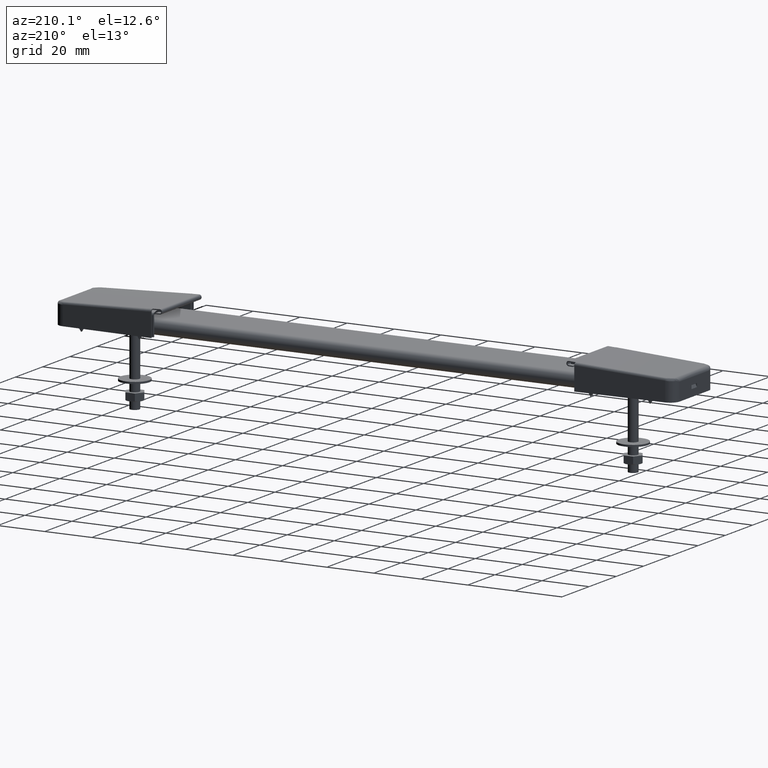
[diagram: clean part render]
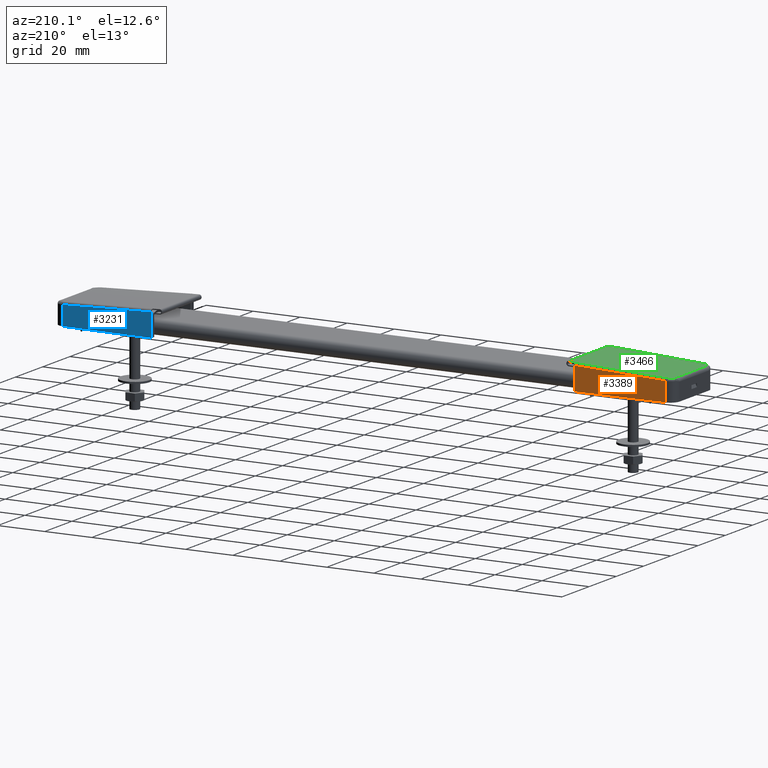
[diagram: same view with three faces highlighted in distinct colors, each labeled with its STEP entity id]
A machine part, auxiliary view with three faces highlighted in distinct colors.
Their STEP definitions:

[orange] entity #3389 — the highlighted face is a freeform B-spline surface patch.
#3003=CARTESIAN_POINT('',(128.094592598178590,-14.698881373630501,8.145223414804848));
#3004=VERTEX_POINT('',#3003);
#3052=CARTESIAN_POINT('',(90.0,-15.599999999999749,9.865849773711291));
#3053=VERTEX_POINT('',#3052);
#3054=CARTESIAN_POINT('',(128.094592598178590,-14.698881373630501,8.145223414804848));
#3055=CARTESIAN_POINT('',(90.0,-15.599999999999749,9.865849773711291));
#3056=QUASI_UNIFORM_CURVE('',1,(#3054,#3055),.UNSPECIFIED.,.F.,.U.);
#3057=EDGE_CURVE('',#3004,#3053,#3056,.T.);
#3144=CARTESIAN_POINT('',(128.094592598178590,-14.698881373630501,0.0));
#3145=VERTEX_POINT('',#3144);
#3146=CARTESIAN_POINT('',(128.094592598178590,-14.698881373630501,0.0));
#3147=CARTESIAN_POINT('',(128.094592598178590,-14.698881373630501,8.145223414804848));
#3148=QUASI_UNIFORM_CURVE('',1,(#3146,#3147),.UNSPECIFIED.,.F.,.U.);
#3149=EDGE_CURVE('',#3145,#3004,#3148,.T.);
#3368=CARTESIAN_POINT('',(129.997413848575090,-14.653870584580430,-0.492799141827202));
#3369=CARTESIAN_POINT('',(88.097174321904902,-15.645010893785949,-0.492799141827202));
#3370=CARTESIAN_POINT('',(129.997413848575090,-14.653870584580430,10.358648474500640));
#3371=CARTESIAN_POINT('',(88.097174321904902,-15.645010893785949,10.358648474500640));
#3372=B_SPLINE_SURFACE_WITH_KNOTS('',1,1,((#3368,#3370),(#3369,#3371)),.UNSPECIFIED.,.F.,.F.,.U.,(2,2),(2,2),(0.0,41.911960482717461),(0.0,10.851447616327841),.UNSPECIFIED.);
#3373=ORIENTED_EDGE('',*,*,#3149,.T.);
#3374=ORIENTED_EDGE('',*,*,#3057,.T.);
#3375=CARTESIAN_POINT('',(90.0,-15.599999999999749,0.0));
#3376=VERTEX_POINT('',#3375);
#3377=CARTESIAN_POINT('',(90.0,-15.599999999999749,9.865849773711291));
#3378=CARTESIAN_POINT('',(90.0,-15.599999999999749,0.0));
#3379=QUASI_UNIFORM_CURVE('',1,(#3377,#3378),.UNSPECIFIED.,.F.,.U.);
#3380=EDGE_CURVE('',#3053,#3376,#3379,.T.);
#3381=ORIENTED_EDGE('',*,*,#3380,.T.);
#3382=CARTESIAN_POINT('',(90.0,-15.599999999999749,0.0));
#3383=CARTESIAN_POINT('',(128.094592598178590,-14.698881373630501,0.0));
#3384=QUASI_UNIFORM_CURVE('',1,(#3382,#3383),.UNSPECIFIED.,.F.,.U.);
#3385=EDGE_CURVE('',#3376,#3145,#3384,.T.);
#3386=ORIENTED_EDGE('',*,*,#3385,.T.);
#3387=EDGE_LOOP('',(#3373,#3374,#3381,#3386));
#3388=FACE_OUTER_BOUND('',#3387,.T.);
#3389=ADVANCED_FACE('',(#3388),#3372,.F.);

[blue] entity #3231 — the highlighted face is a freeform B-spline surface patch.
#2669=CARTESIAN_POINT('',(128.094592598178590,14.698881373630520,8.145223414800340));
#2670=VERTEX_POINT('',#2669);
#3101=CARTESIAN_POINT('',(90.0,15.600000000000000,9.865849773706781));
#3102=VERTEX_POINT('',#3101);
#3103=CARTESIAN_POINT('',(90.0,15.600000000000000,9.865849773706781));
#3104=CARTESIAN_POINT('',(128.094592598178590,14.698881373630520,8.145223414800340));
#3105=QUASI_UNIFORM_CURVE('',1,(#3103,#3104),.UNSPECIFIED.,.F.,.U.);
#3106=EDGE_CURVE('',#3102,#2670,#3105,.T.);
#3180=CARTESIAN_POINT('',(128.094592598178590,14.698881373630520,0.0));
#3181=VERTEX_POINT('',#3180);
#3195=CARTESIAN_POINT('',(128.094592598178590,14.698881373630520,8.145223414800340));
#3196=CARTESIAN_POINT('',(128.094592598178590,14.698881373630520,0.0));
#3197=QUASI_UNIFORM_CURVE('',1,(#3195,#3196),.UNSPECIFIED.,.F.,.U.);
#3198=EDGE_CURVE('',#2670,#3181,#3197,.T.);
#3210=CARTESIAN_POINT('',(88.097175445756974,15.645010867201780,-0.492799141826978));
#3211=CARTESIAN_POINT('',(129.997412724723090,14.653870611164930,-0.492799141826978));
#3212=CARTESIAN_POINT('',(88.097175445756974,15.645010867201780,10.358648474495910));
#3213=CARTESIAN_POINT('',(129.997412724723090,14.653870611164930,10.358648474495910));
#3214=B_SPLINE_SURFACE_WITH_KNOTS('',1,1,((#3210,#3212),(#3211,#3213)),.UNSPECIFIED.,.F.,.F.,.U.,(2,2),(2,2),(0.0,41.911958234384556),(0.0,10.851447616322890),.UNSPECIFIED.);
#3215=CARTESIAN_POINT('',(90.0,15.600000000000000,0.0));
#3216=VERTEX_POINT('',#3215);
#3217=CARTESIAN_POINT('',(90.0,15.600000000000000,9.865849773706781));
#3218=CARTESIAN_POINT('',(90.0,15.600000000000000,0.0));
#3219=QUASI_UNIFORM_CURVE('',1,(#3217,#3218),.UNSPECIFIED.,.F.,.U.);
#3220=EDGE_CURVE('',#3102,#3216,#3219,.T.);
#3221=ORIENTED_EDGE('',*,*,#3220,.F.);
#3222=ORIENTED_EDGE('',*,*,#3106,.T.);
#3223=ORIENTED_EDGE('',*,*,#3198,.T.);
#3224=CARTESIAN_POINT('',(128.094592598178590,14.698881373630520,0.0));
#3225=CARTESIAN_POINT('',(90.0,15.600000000000000,0.0));
#3226=QUASI_UNIFORM_CURVE('',1,(#3224,#3225),.UNSPECIFIED.,.F.,.U.);
#3227=EDGE_CURVE('',#3181,#3216,#3226,.T.);
#3228=ORIENTED_EDGE('',*,*,#3227,.T.);
#3229=EDGE_LOOP('',(#3221,#3222,#3223,#3228));
#3230=FACE_OUTER_BOUND('',#3229,.T.);
#3231=ADVANCED_FACE('',(#3230),#3214,.F.);

[green] entity #3466 — the highlighted face is a freeform B-spline surface patch.
#2656=CARTESIAN_POINT('',(130.567681808010010,12.323788165327260,9.033472279644892));
#2657=VERTEX_POINT('',#2656);
#2680=CARTESIAN_POINT('',(128.116065653974200,13.699161030222919,9.144204934566529));
#2681=VERTEX_POINT('',#2680);
#2692=CARTESIAN_POINT('',(130.567681808010010,12.323788165327260,9.033472279644892));
#2693=CARTESIAN_POINT('',(130.402718137481200,12.580231644302859,9.040923227941999));
#2694=CARTESIAN_POINT('',(130.055109383301500,12.972571867068661,9.056623744585597));
#2695=CARTESIAN_POINT('',(129.238800696182610,13.516475572544630,9.093494128235971));
#2696=CARTESIAN_POINT('',(128.573135245041700,13.689141624679211,9.123560377623011));
#2697=CARTESIAN_POINT('',(128.116065653974200,13.699161030222919,9.144204934566529));
#2698=B_SPLINE_CURVE_WITH_KNOTS('',3,(#2692,#2693,#2694,#2695,#2696,#2697),.UNSPECIFIED.,.F.,.U.,(4,1,1,4),(0.000000295960336,0.914984102181019,1.555390239305830,2.927887066514133),.UNSPECIFIED.);
#2699=EDGE_CURVE('',#2657,#2681,#2698,.T.);
#2818=CARTESIAN_POINT('',(130.567681808010010,-12.323788165327160,9.033472279644892));
#2819=VERTEX_POINT('',#2818);
#2857=CARTESIAN_POINT('',(130.567681808010010,-12.323788165327160,9.033472279644892));
#2858=CARTESIAN_POINT('',(130.567681808010010,12.323788165327260,9.033472279644892));
#2859=QUASI_UNIFORM_CURVE('',1,(#2857,#2858),.UNSPECIFIED.,.F.,.U.);
#2860=EDGE_CURVE('',#2819,#2657,#2859,.T.);
#3005=CARTESIAN_POINT('',(128.116065653974000,-13.699161030222781,9.144204934566540));
#3006=VERTEX_POINT('',#3005);
#3027=CARTESIAN_POINT('',(128.116065653974000,-13.699161030222781,9.144204934566540));
#3028=CARTESIAN_POINT('',(128.634134181655700,-13.688319444775651,9.120805226008157));
#3029=CARTESIAN_POINT('',(129.601163886788810,-13.404746838235040,9.077127194901456));
#3030=CARTESIAN_POINT('',(130.320575288626910,-12.708757893490001,9.044633391018204));
#3031=CARTESIAN_POINT('',(130.567681808010010,-12.323788165327160,9.033472279644892));
#3032=B_SPLINE_CURVE_WITH_KNOTS('',3,(#3027,#3028,#3029,#3030,#3031),.UNSPECIFIED.,.F.,.U.,(4,1,4),(0.000000295948012,1.555388461312346,2.927883717001460),.UNSPECIFIED.);
#3033=EDGE_CURVE('',#3006,#2819,#3032,.T.);
#3060=CARTESIAN_POINT('',(90.0,-14.600787596675501,10.865801171434320));
#3061=VERTEX_POINT('',#3060);
#3062=CARTESIAN_POINT('',(90.0,-14.600787596675501,10.865801171434320));
#3063=CARTESIAN_POINT('',(128.116065653974000,-13.699161030222781,9.144204934566540));
#3064=QUASI_UNIFORM_CURVE('',1,(#3062,#3063),.UNSPECIFIED.,.F.,.U.);
#3065=EDGE_CURVE('',#3061,#3006,#3064,.T.);
#3093=CARTESIAN_POINT('',(90.0,14.600787596675820,10.865801171434320));
#3094=VERTEX_POINT('',#3093);
#3095=CARTESIAN_POINT('',(128.116065653974200,13.699161030222919,9.144204934566529));
#3096=CARTESIAN_POINT('',(90.0,14.600787596675820,10.865801171434320));
#3097=QUASI_UNIFORM_CURVE('',1,(#3095,#3096),.UNSPECIFIED.,.F.,.U.);
#3098=EDGE_CURVE('',#2681,#3094,#3097,.T.);
#3273=CARTESIAN_POINT('',(87.045121205340010,14.500000000000000,10.999264794345200));
#3274=VERTEX_POINT('',#3273);
#3285=CARTESIAN_POINT('',(90.0,14.500000000000000,10.865801171434001));
#3286=VERTEX_POINT('',#3285);
#3287=CARTESIAN_POINT('',(87.045121205340010,14.500000000000000,10.999264794345200));
#3288=CARTESIAN_POINT('',(90.0,14.500000000000000,10.865801171434001));
#3289=QUASI_UNIFORM_CURVE('',1,(#3287,#3288),.UNSPECIFIED.,.F.,.U.);
#3290=EDGE_CURVE('',#3274,#3286,#3289,.T.);
#3314=CARTESIAN_POINT('',(90.0,-14.500000000000000,10.865801171419919));
#3315=VERTEX_POINT('',#3314);
#3321=CARTESIAN_POINT('',(87.045121205340010,-14.500000000000000,10.999264794345200));
#3322=VERTEX_POINT('',#3321);
#3323=CARTESIAN_POINT('',(90.0,-14.500000000000000,10.865801171419919));
#3324=CARTESIAN_POINT('',(87.045121205340010,-14.500000000000000,10.999264794345200));
#3325=QUASI_UNIFORM_CURVE('',1,(#3323,#3324),.UNSPECIFIED.,.F.,.U.);
#3326=EDGE_CURVE('',#3315,#3322,#3325,.T.);
#3430=CARTESIAN_POINT('',(87.045121205340010,14.500000000000000,10.999264794345200));
#3431=CARTESIAN_POINT('',(87.045121205340010,-14.500000000000000,10.999264794345200));
#3432=QUASI_UNIFORM_CURVE('',1,(#3430,#3431),.UNSPECIFIED.,.F.,.U.);
#3433=EDGE_CURVE('',#3274,#3322,#3432,.T.);
#3441=CARTESIAN_POINT('',(84.871167850929510,-16.059405842533049,11.097456196051120));
#3442=CARTESIAN_POINT('',(132.741641388372700,-16.059405842533049,8.935280596730076));
#3443=CARTESIAN_POINT('',(84.871167850929510,16.059404798203659,11.097456196051120));
#3444=CARTESIAN_POINT('',(132.741641388372700,16.059404798203659,8.935280596730076));
#3445=B_SPLINE_SURFACE_WITH_KNOTS('',1,1,((#3441,#3443),(#3442,#3444)),.UNSPECIFIED.,.F.,.F.,.U.,(2,2),(2,2),(0.0,47.919278375423723),(0.0,32.118810640736697),.UNSPECIFIED.);
#3446=ORIENTED_EDGE('',*,*,#2860,.T.);
#3447=ORIENTED_EDGE('',*,*,#2699,.T.);
#3448=ORIENTED_EDGE('',*,*,#3098,.T.);
#3449=CARTESIAN_POINT('',(90.0,14.500000000000000,10.865801171434001));
#3450=CARTESIAN_POINT('',(90.0,14.600787596675820,10.865801171434320));
#3451=QUASI_UNIFORM_CURVE('',1,(#3449,#3450),.UNSPECIFIED.,.F.,.U.);
#3452=EDGE_CURVE('',#3286,#3094,#3451,.T.);
#3453=ORIENTED_EDGE('',*,*,#3452,.F.);
#3454=ORIENTED_EDGE('',*,*,#3290,.F.);
#3455=ORIENTED_EDGE('',*,*,#3433,.T.);
#3456=ORIENTED_EDGE('',*,*,#3326,.F.);
#3457=CARTESIAN_POINT('',(90.0,-14.600787596675501,10.865801171434320));
#3458=CARTESIAN_POINT('',(90.0,-14.500000000000000,10.865801171419919));
#3459=QUASI_UNIFORM_CURVE('',1,(#3457,#3458),.UNSPECIFIED.,.F.,.U.);
#3460=EDGE_CURVE('',#3061,#3315,#3459,.T.);
#3461=ORIENTED_EDGE('',*,*,#3460,.F.);
#3462=ORIENTED_EDGE('',*,*,#3065,.T.);
#3463=ORIENTED_EDGE('',*,*,#3033,.T.);
#3464=EDGE_LOOP('',(#3446,#3447,#3448,#3453,#3454,#3455,#3456,#3461,#3462,#3463));
#3465=FACE_OUTER_BOUND('',#3464,.T.);
#3466=ADVANCED_FACE('',(#3465),#3445,.T.);